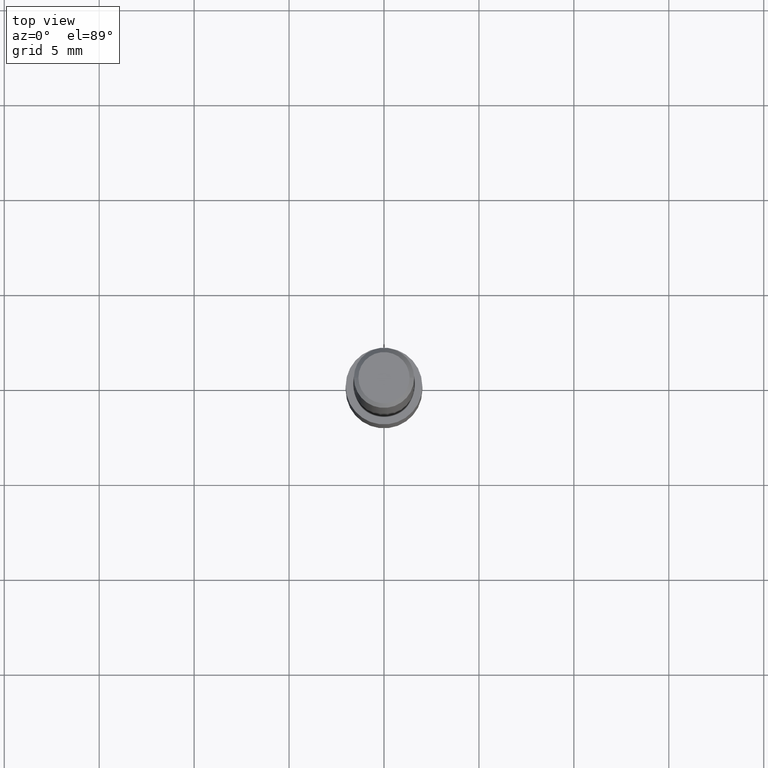
[diagram: clean part render]
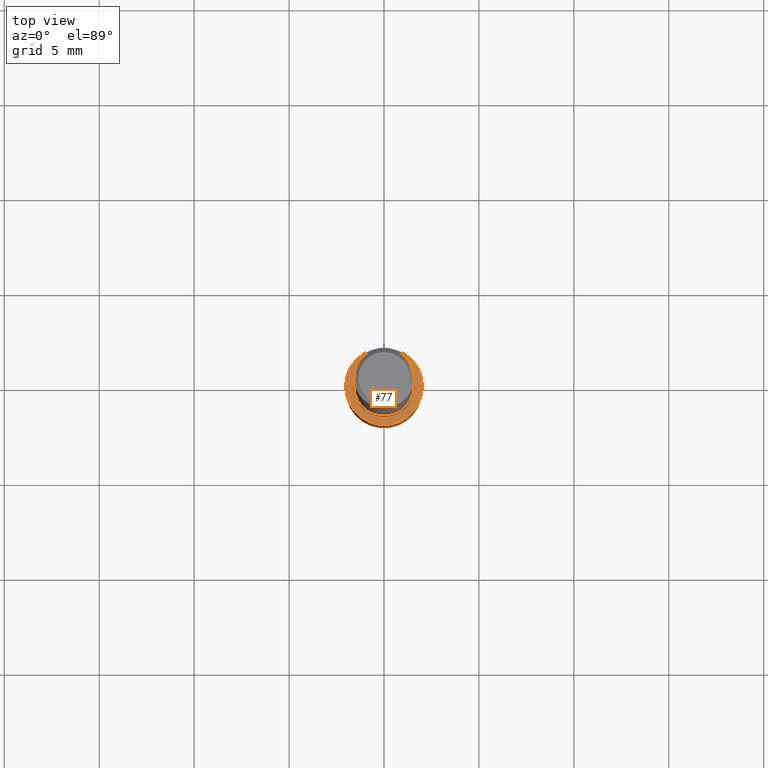
[diagram: same view with one face highlighted and labeled with its STEP entity id]
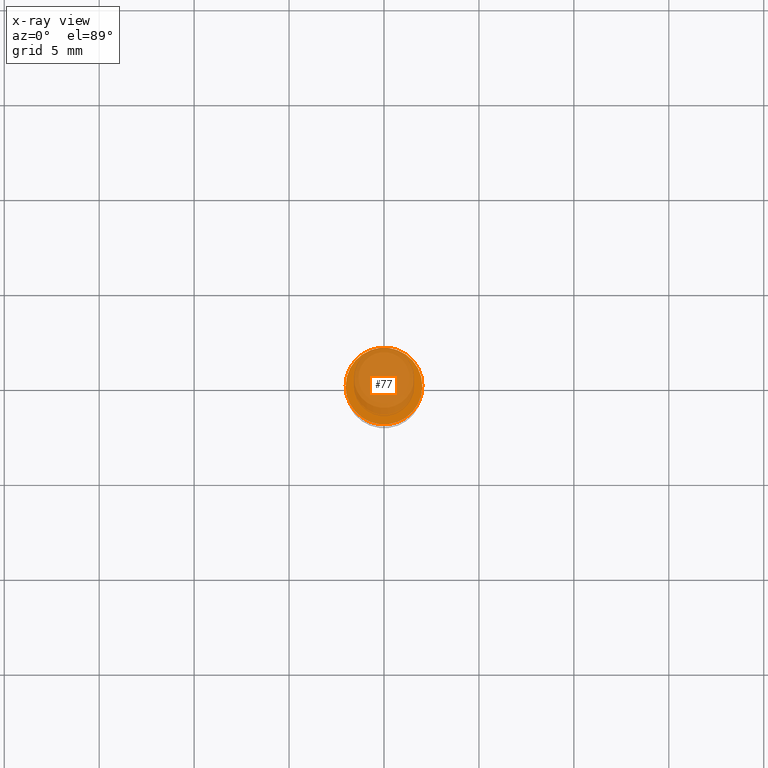
[diagram: x-ray of the same camera — body ghosted, the highlighted face saturated]
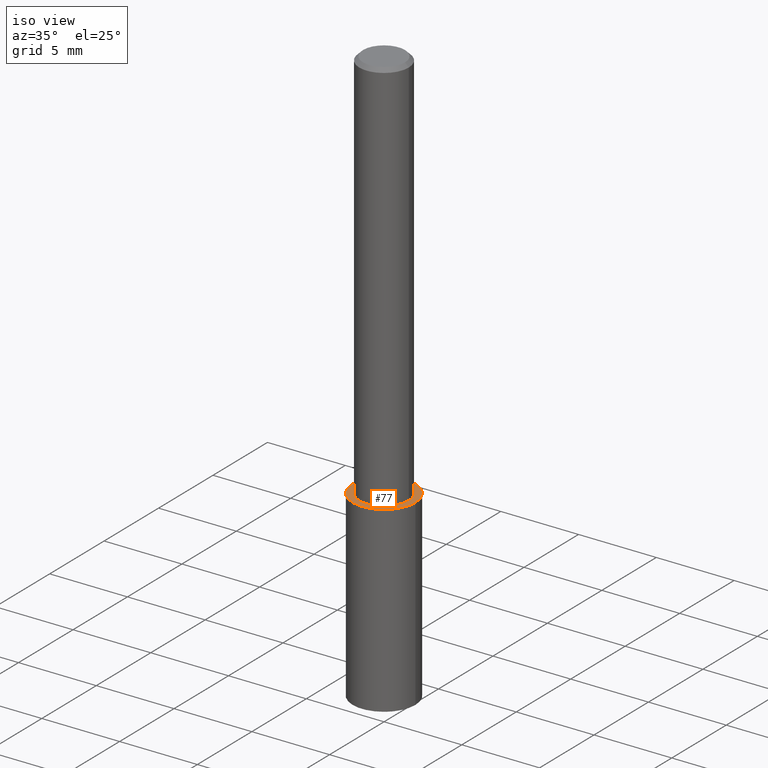
[diagram: same view with one face highlighted and labeled with its STEP entity id]
A machine part, top view. The second image highlights one B-rep face of the part: STEP entity #77.
The next image is the same camera in x-ray: the body ghosted, the highlighted face saturated — about 71% of this face is hidden behind the body in this view.
A second angle (iso view) of the same face is appended — the face is thin or edge-on in the first view.
In plain terms, the highlighted planar face has unit normal (0, -0, -1).
Its self-contained STEP definition (entity closure, byte-faithful):
#20 = AXIS2_PLACEMENT_3D ( 'NONE', #278, #338, #170 ) ;
#25 = EDGE_LOOP ( 'NONE', ( #36, #115 ) ) ;
#36 = ORIENTED_EDGE ( 'NONE', *, *, #83, .T. ) ;
#37 = DIRECTION ( 'NONE',  ( -2.445468806185136597E-29, 3.491481338843145583E-15, 1.000000000000000000 ) ) ;
#60 = DIRECTION ( 'NONE',  ( 1.000000000000000000, -6.982962677686265922E-15, 0.000000000000000000 ) ) ;
#63 = VERTEX_POINT ( 'NONE', #230 ) ;
#77 = ADVANCED_FACE ( 'NONE', ( #280 ), #122, .F. ) ;
#83 = EDGE_CURVE ( 'NONE', #63, #228, #106, .T. ) ;
#86 = DIRECTION ( 'NONE',  ( -2.445468806185136597E-29, 3.491481338843145583E-15, 1.000000000000000000 ) ) ;
#106 = CIRCLE ( 'NONE', #273, 0.07950000000000000122 ) ;
#115 = ORIENTED_EDGE ( 'NONE', *, *, #183, .T. ) ;
#122 = PLANE ( 'NONE',  #20 ) ;
#141 = CARTESIAN_POINT ( 'NONE',  ( 2.445468806185136877E-29, -3.491481338843145977E-15, -1.000000000000000222 ) ) ;
#170 = DIRECTION ( 'NONE',  ( -1.000000000000000000, 6.982962677686265922E-15, -4.876176775795935793E-29 ) ) ;
#183 = EDGE_CURVE ( 'NONE', #228, #63, #220, .T. ) ;
#201 = CARTESIAN_POINT ( 'NONE',  ( 2.445468806185136877E-29, -3.491481338843145977E-15, -1.000000000000000222 ) ) ;
#220 = CIRCLE ( 'NONE', #293, 0.07950000000000000122 ) ;
#228 = VERTEX_POINT ( 'NONE', #321 ) ;
#230 = CARTESIAN_POINT ( 'NONE',  ( 0.07950000000000000122, -4.046626871719203833E-15, -1.000000000000000222 ) ) ;
#271 = DIRECTION ( 'NONE',  ( 1.000000000000000000, -6.982962677686265922E-15, 0.000000000000000000 ) ) ;
#273 = AXIS2_PLACEMENT_3D ( 'NONE', #201, #37, #60 ) ;
#278 = CARTESIAN_POINT ( 'NONE',  ( 3.645241924478826794E-29, -1.773337946601470975E-15, -1.000000000000000222 ) ) ;
#280 = FACE_OUTER_BOUND ( 'NONE', #25, .T. ) ;
#293 = AXIS2_PLACEMENT_3D ( 'NONE', #141, #86, #271 ) ;
#321 = CARTESIAN_POINT ( 'NONE',  ( -0.07950000000000000122, -3.734753045281991384E-15, -1.000000000000000222 ) ) ;
#338 = DIRECTION ( 'NONE',  ( 2.438088387897960049E-29, -3.491481338843145188E-15, -1.000000000000000000 ) ) ;